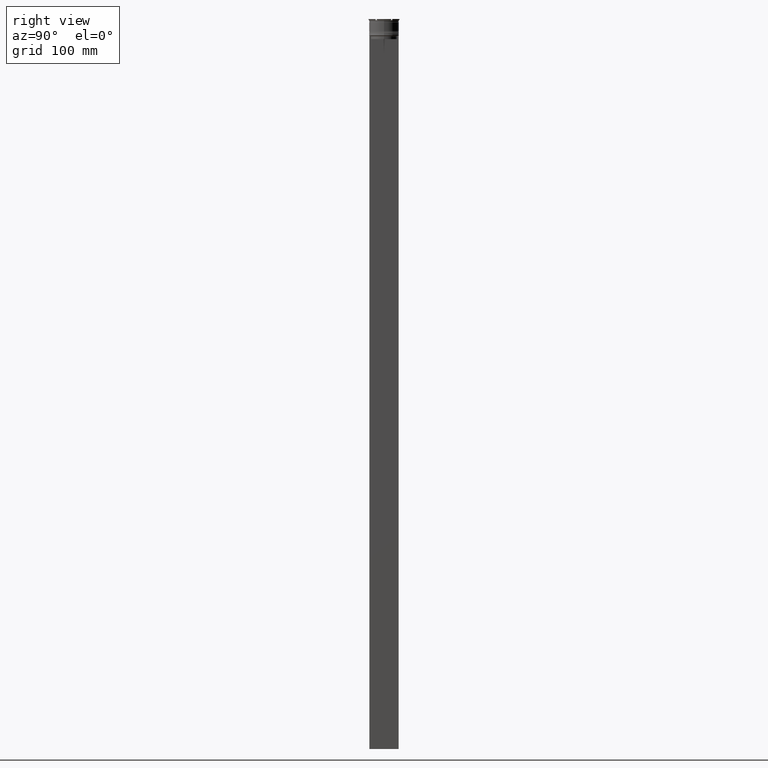
[diagram: clean part render]
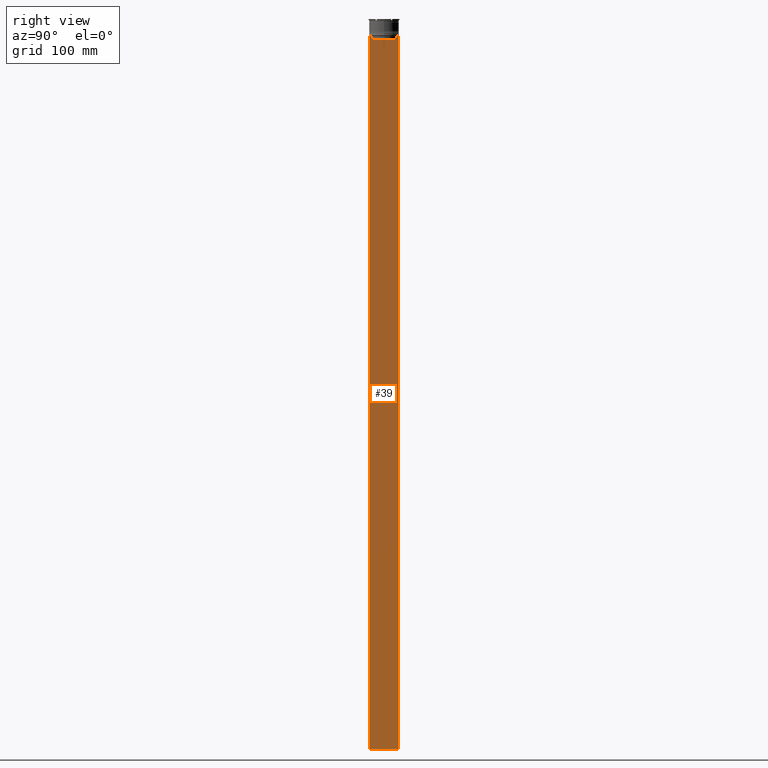
[diagram: same view with one face highlighted and labeled with its STEP entity id]
A machine part, right view. The second image highlights one B-rep face of the part: STEP entity #39.
In plain terms, the highlighted planar face has unit normal (-1, 0, 0).
Its self-contained STEP definition (entity closure, byte-faithful):
#39 = ADVANCED_FACE ( 'NONE', ( #503 ), #276, .F. ) ;
#43 = VECTOR ( 'NONE', #2536, 1000.000000000000000 ) ;
#92 = CARTESIAN_POINT ( 'NONE',  ( 0.5000000000000002220, -11.22219891450652973, -14.16667035398018903 ) ) ;
#132 = LINE ( 'NONE', #1080, #2641 ) ;
#218 = VERTEX_POINT ( 'NONE', #1869 ) ;
#276 = PLANE ( 'NONE',  #618 ) ;
#299 = CARTESIAN_POINT ( 'NONE',  ( 0.5000000000000002220, -12.25000000000000711, 10.52039967047845792 ) ) ;
#305 = DIRECTION ( 'NONE',  ( 0.000000000000000000, -1.000000000000000000, 0.000000000000000000 ) ) ;
#311 = CARTESIAN_POINT ( 'NONE',  ( 0.5000000000000002220, -12.25000000000000711, -614.0000000000000000 ) ) ;
#353 = VECTOR ( 'NONE', #2663, 1000.000000000000000 ) ;
#365 = EDGE_CURVE ( 'NONE', #2685, #2490, #2165, .T. ) ;
#369 = EDGE_CURVE ( 'NONE', #415, #2685, #1828, .T. ) ;
#415 = VERTEX_POINT ( 'NONE', #1072 ) ;
#471 = ORIENTED_EDGE ( 'NONE', *, *, #2137, .T. ) ;
#475 = CARTESIAN_POINT ( 'NONE',  ( 0.5000000000000002220, -11.38902980942626719, -14.00000000000000178 ) ) ;
#483 = VERTEX_POINT ( 'NONE', #475 ) ;
#503 = FACE_OUTER_BOUND ( 'NONE', #2002, .T. ) ;
#530 = VECTOR ( 'NONE', #305, 1000.000000000000000 ) ;
#532 = CARTESIAN_POINT ( 'NONE',  ( 0.5000000000000002220, 10.90000000000000213, -17.00000000000000000 ) ) ;
#549 = EDGE_CURVE ( 'NONE', #1272, #1975, #132, .T. ) ;
#550 = LINE ( 'NONE', #532, #530 ) ;
#552 = CARTESIAN_POINT ( 'NONE',  ( 0.5000000000000002220, -12.25000000000000711, -14.00000000000000178 ) ) ;
#554 = ORIENTED_EDGE ( 'NONE', *, *, #2168, .T. ) ;
#597 = CARTESIAN_POINT ( 'NONE',  ( 0.5000000000000002220, 10.88852607105296144, -17.00000000000000000 ) ) ;
#610 = CARTESIAN_POINT ( 'NONE',  ( 0.5000000000000002220, -12.25000000000000711, -14.00000000000000178 ) ) ;
#618 = AXIS2_PLACEMENT_3D ( 'NONE', #299, #2639, #1375 ) ;
#652 = ORIENTED_EDGE ( 'NONE', *, *, #1943, .T. ) ;
#656 = CARTESIAN_POINT ( 'NONE',  ( 0.5000000000000002220, -12.25000000000000711, -14.00000000000000178 ) ) ;
#740 = CARTESIAN_POINT ( 'NONE',  ( 0.5000000000000002220, -11.05536450423839057, -14.33333718996393280 ) ) ;
#845 = ORIENTED_EDGE ( 'NONE', *, *, #2746, .T. ) ;
#879 = CARTESIAN_POINT ( 'NONE',  ( 0.5000000000000002220, 11.38902980942626719, -14.00000000000000178 ) ) ;
#901 = CARTESIAN_POINT ( 'NONE',  ( 0.5000000000000002220, 12.24999999999999289, -614.0000000000000000 ) ) ;
#935 = ORIENTED_EDGE ( 'NONE', *, *, #369, .T. ) ;
#937 = DIRECTION ( 'NONE',  ( -0.000000000000000000, -0.000000000000000000, 1.000000000000000000 ) ) ;
#964 = ORIENTED_EDGE ( 'NONE', *, *, #549, .T. ) ;
#976 = ORIENTED_EDGE ( 'NONE', *, *, #1313, .T. ) ;
#1061 = CARTESIAN_POINT ( 'NONE',  ( 0.5000000000000002220, 10.88852607105296322, 0.000000000000000000 ) ) ;
#1072 = CARTESIAN_POINT ( 'NONE',  ( 0.5000000000000002220, 11.38902980942626719, -14.00000000000000178 ) ) ;
#1080 = CARTESIAN_POINT ( 'NONE',  ( 0.5000000000000002220, -12.25000000000000711, 10.52039967047845792 ) ) ;
#1119 = CARTESIAN_POINT ( 'NONE',  ( 0.5000000000000002220, -10.88852607105296322, 0.000000000000000000 ) ) ;
#1177 = CARTESIAN_POINT ( 'NONE',  ( 0.5000000000000002220, -10.88852607105296144, -17.00000000000000000 ) ) ;
#1214 = VECTOR ( 'NONE', #1646, 1000.000000000000000 ) ;
#1272 = VERTEX_POINT ( 'NONE', #552 ) ;
#1313 = EDGE_CURVE ( 'NONE', #1975, #2164, #1380, .T. ) ;
#1316 = EDGE_CURVE ( 'NONE', #483, #1272, #2546, .T. ) ;
#1375 = DIRECTION ( 'NONE',  ( 0.000000000000000000, 0.000000000000000000, 1.000000000000000000 ) ) ;
#1380 = LINE ( 'NONE', #311, #2022 ) ;
#1409 = LINE ( 'NONE', #1800, #353 ) ;
#1442 = DIRECTION ( 'NONE',  ( 0.000000000000000000, 1.000000000000000000, 0.000000000000000000 ) ) ;
#1474 = DIRECTION ( 'NONE',  ( 0.000000000000000000, 0.000000000000000000, -1.000000000000000000 ) ) ;
#1496 = ORIENTED_EDGE ( 'NONE', *, *, #2325, .F. ) ;
#1634 = B_SPLINE_CURVE_WITH_KNOTS ( 'NONE', 3,
 ( #2508, #740, #92, #1867 ),
 .UNSPECIFIED., .F., .F.,
 ( 4, 4 ),
 ( 0.05041323384703228633, 0.05112713601261608537 ),
 .UNSPECIFIED. ) ;
#1646 = DIRECTION ( 'NONE',  ( 0.000000000000000000, -1.000000000000000000, 0.000000000000000000 ) ) ;
#1682 = LINE ( 'NONE', #656, #43 ) ;
#1736 = LINE ( 'NONE', #1119, #1932 ) ;
#1738 = CARTESIAN_POINT ( 'NONE',  ( 0.5000000000000002220, 11.22219891375843304, -14.16667035472756808 ) ) ;
#1800 = CARTESIAN_POINT ( 'NONE',  ( 0.5000000000000002220, 12.24999999999999289, 10.52039967047845792 ) ) ;
#1828 = B_SPLINE_CURVE_WITH_KNOTS ( 'NONE', 3,
 ( #879, #1738, #2389, #1970 ),
 .UNSPECIFIED., .F., .F.,
 ( 4, 4 ),
 ( 0.01935560801904634073, 0.02006307108468586772 ),
 .UNSPECIFIED. ) ;
#1867 = CARTESIAN_POINT ( 'NONE',  ( 0.5000000000000002220, -11.38902980942626719, -14.00000000000000178 ) ) ;
#1869 = CARTESIAN_POINT ( 'NONE',  ( 0.5000000000000002220, 12.24999999999999289, -14.00000000000000178 ) ) ;
#1894 = DIRECTION ( 'NONE',  ( 0.000000000000000000, 0.000000000000000000, -1.000000000000000000 ) ) ;
#1932 = VECTOR ( 'NONE', #937, 1000.000000000000000 ) ;
#1943 = EDGE_CURVE ( 'NONE', #2252, #483, #1634, .T. ) ;
#1964 = CARTESIAN_POINT ( 'NONE',  ( 0.5000000000000002220, 10.88852607105296322, -14.50000000000000000 ) ) ;
#1970 = CARTESIAN_POINT ( 'NONE',  ( 0.5000000000000002220, 10.88852607105296322, -14.50000000000000000 ) ) ;
#1974 = VECTOR ( 'NONE', #1474, 1000.000000000000000 ) ;
#1975 = VERTEX_POINT ( 'NONE', #2287 ) ;
#2002 = EDGE_LOOP ( 'NONE', ( #471, #935, #2659, #845, #554, #652, #2363, #964, #976, #1496 ) ) ;
#2022 = VECTOR ( 'NONE', #1442, 1000.000000000000000 ) ;
#2137 = EDGE_CURVE ( 'NONE', #218, #415, #1682, .T. ) ;
#2164 = VERTEX_POINT ( 'NONE', #901 ) ;
#2165 = LINE ( 'NONE', #1061, #1974 ) ;
#2168 = EDGE_CURVE ( 'NONE', #2308, #2252, #1736, .T. ) ;
#2252 = VERTEX_POINT ( 'NONE', #2425 ) ;
#2287 = CARTESIAN_POINT ( 'NONE',  ( 0.5000000000000002220, -12.25000000000000711, -614.0000000000000000 ) ) ;
#2308 = VERTEX_POINT ( 'NONE', #1177 ) ;
#2325 = EDGE_CURVE ( 'NONE', #218, #2164, #1409, .T. ) ;
#2363 = ORIENTED_EDGE ( 'NONE', *, *, #1316, .T. ) ;
#2389 = CARTESIAN_POINT ( 'NONE',  ( 0.5000000000000002220, 11.05536450345590538, -14.33333719074559376 ) ) ;
#2425 = CARTESIAN_POINT ( 'NONE',  ( 0.5000000000000002220, -10.88852607105296322, -14.50000000000000000 ) ) ;
#2490 = VERTEX_POINT ( 'NONE', #597 ) ;
#2508 = CARTESIAN_POINT ( 'NONE',  ( 0.5000000000000002220, -10.88852607105296322, -14.50000000000000000 ) ) ;
#2536 = DIRECTION ( 'NONE',  ( 0.000000000000000000, -1.000000000000000000, 0.000000000000000000 ) ) ;
#2546 = LINE ( 'NONE', #610, #1214 ) ;
#2639 = DIRECTION ( 'NONE',  ( -1.000000000000000000, 0.000000000000000000, 0.000000000000000000 ) ) ;
#2641 = VECTOR ( 'NONE', #1894, 1000.000000000000000 ) ;
#2659 = ORIENTED_EDGE ( 'NONE', *, *, #365, .T. ) ;
#2663 = DIRECTION ( 'NONE',  ( 0.000000000000000000, 0.000000000000000000, -1.000000000000000000 ) ) ;
#2685 = VERTEX_POINT ( 'NONE', #1964 ) ;
#2746 = EDGE_CURVE ( 'NONE', #2490, #2308, #550, .T. ) ;